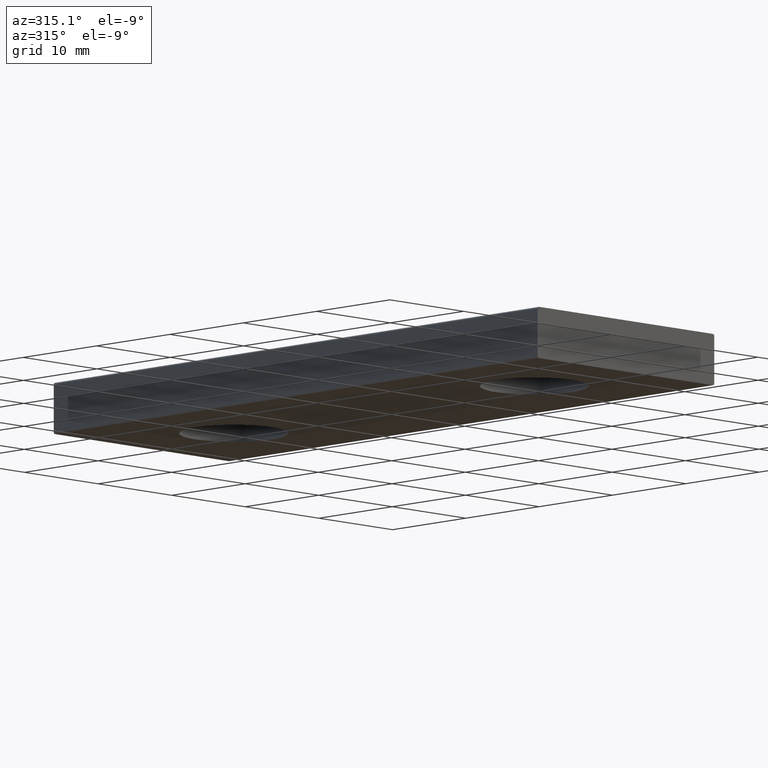
[diagram: clean part render]
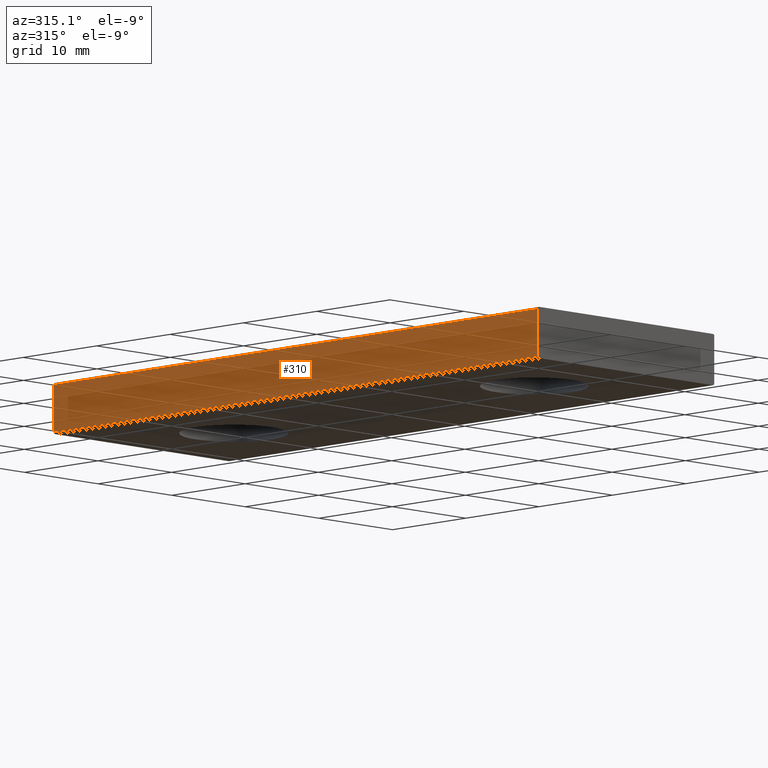
[diagram: same view with one face highlighted and labeled with its STEP entity id]
A machine part, auxiliary view. The second image highlights one B-rep face of the part: STEP entity #310.
In plain terms, the highlighted planar face has unit normal (-1, 0, -0).
Its self-contained STEP definition (entity closure, byte-faithful):
#23=PLANE('',#337);
#29=LINE('',#427,#45);
#30=LINE('',#432,#46);
#36=LINE('',#454,#52);
#41=LINE('',#461,#57);
#45=VECTOR('',#360,1000.);
#46=VECTOR('',#365,1000.);
#52=VECTOR('',#387,1000.);
#57=VECTOR('',#396,1000.);
#96=ORIENTED_EDGE('',*,*,#139,.F.);
#97=ORIENTED_EDGE('',*,*,#121,.T.);
#98=ORIENTED_EDGE('',*,*,#134,.T.);
#99=ORIENTED_EDGE('',*,*,#123,.F.);
#121=EDGE_CURVE('',#147,#149,#29,.T.);
#123=EDGE_CURVE('',#150,#152,#30,.T.);
#134=EDGE_CURVE('',#149,#152,#36,.T.);
#139=EDGE_CURVE('',#147,#150,#41,.T.);
#147=VERTEX_POINT('',#422);
#149=VERTEX_POINT('',#426);
#150=VERTEX_POINT('',#430);
#152=VERTEX_POINT('',#433);
#183=EDGE_LOOP('',(#96,#97,#98,#99));
#201=FACE_BOUND('',#183,.T.);
#310=ADVANCED_FACE('',(#201),#23,.T.);
#337=AXIS2_PLACEMENT_3D('',#462,#397,#398);
#360=DIRECTION('',(1.31371731030452E-46,1.,1.49186218934005E-16));
#365=DIRECTION('',(1.31371731030452E-46,1.,1.49186218934005E-16));
#387=DIRECTION('',(1.49186218934005E-16,1.49186218934005E-16,-1.));
#396=DIRECTION('',(1.49186218934005E-16,1.49186218934005E-16,-1.));
#397=DIRECTION('',(-1.,2.2256527919825E-32,-1.49186218934005E-16));
#398=DIRECTION('',(0.,-1.,-1.49186218934005E-16));
#422=CARTESIAN_POINT('',(2.98372437868008E-17,2.98372437868008E-17,4.79999999999973));
#426=CARTESIAN_POINT('',(2.9837243786801E-17,66.,4.79999999999974));
#427=CARTESIAN_POINT('',(2.71050543121376E-17,66.,4.79999999999974));
#430=CARTESIAN_POINT('',(7.16093850883224E-16,7.16093850883224E-16,0.199999999999732));
#432=CARTESIAN_POINT('',(7.16093850883224E-16,66.09,0.199999999999741));
#433=CARTESIAN_POINT('',(7.16093850883224E-16,66.,0.199999999999742));
#454=CARTESIAN_POINT('',(0.,66.,4.99999999999974));
#461=CARTESIAN_POINT('',(0.,0.,4.99999999999973));
#462=CARTESIAN_POINT('',(0.,66.09,4.99999999999974));